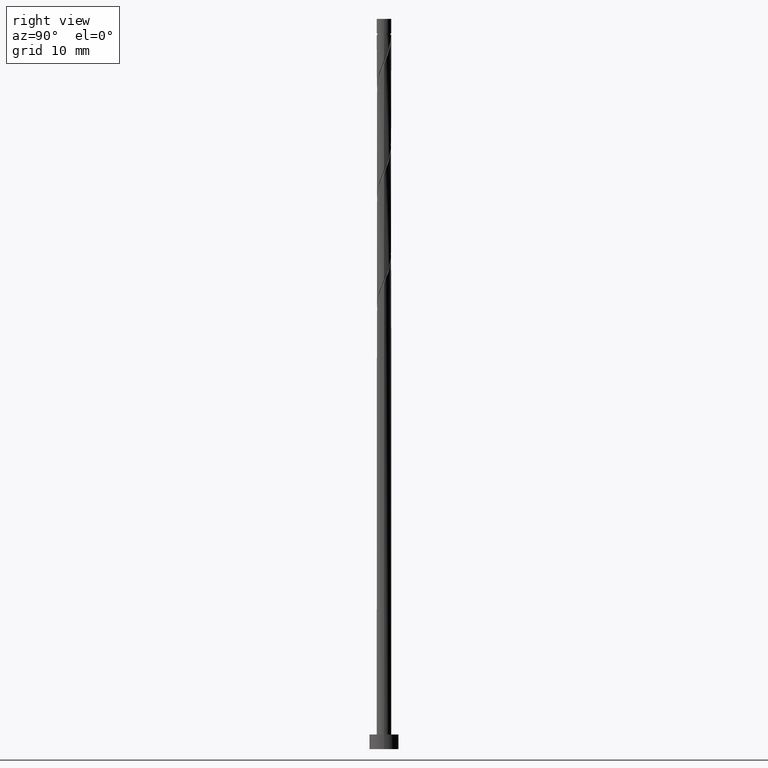
[diagram: clean part render]
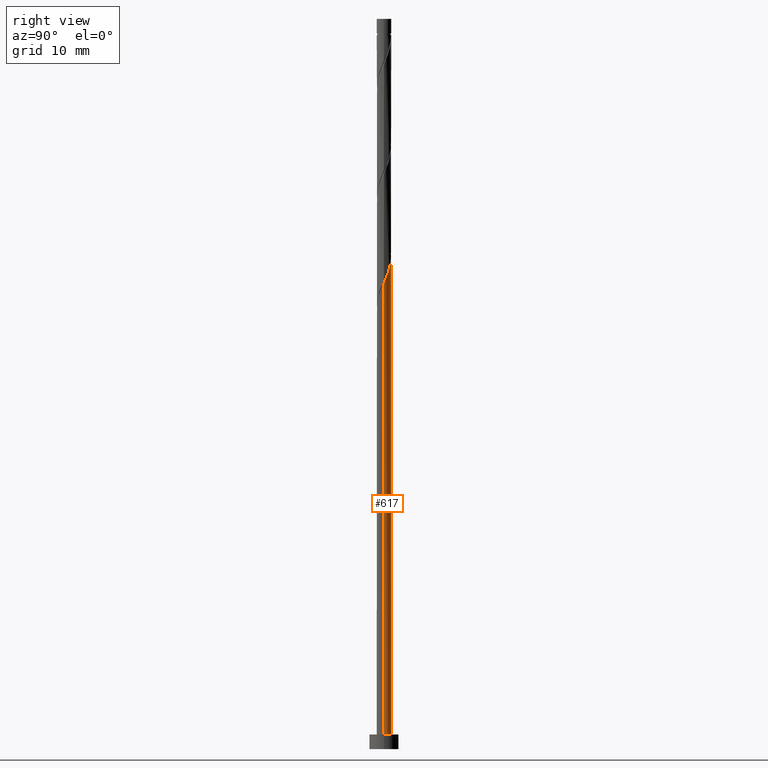
[diagram: same view with one face highlighted and labeled with its STEP entity id]
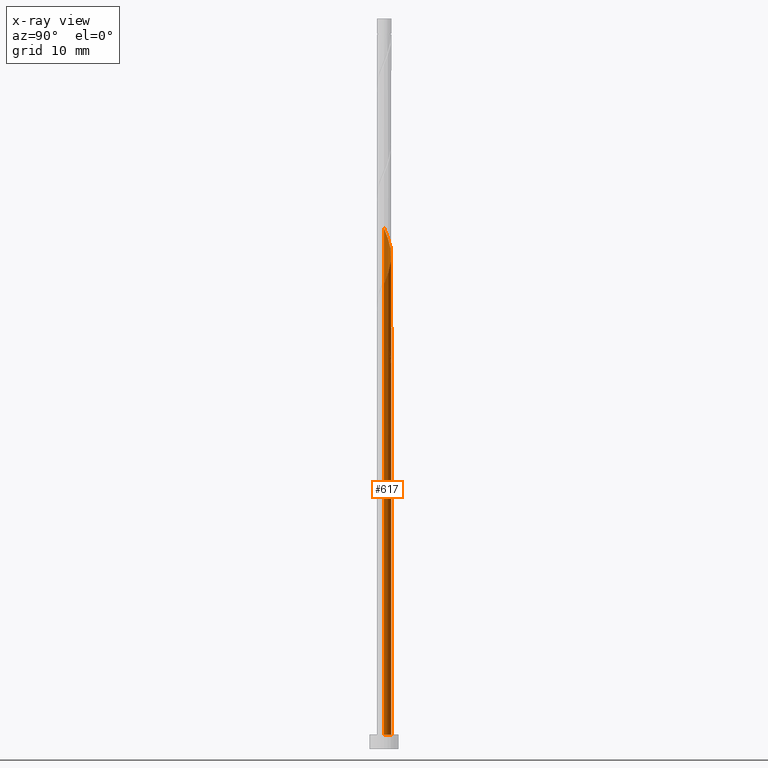
[diagram: x-ray of the same camera — body ghosted, the highlighted face saturated]
A machine part, right view. The second image highlights one B-rep face of the part: STEP entity #617.
The next image is the same camera in x-ray: the body ghosted, the highlighted face saturated — about 0% of this face is hidden behind the body in this view.
In plain terms, the highlighted cylindrical surface (edge-blend (fillet) strip) has radius 1 mm, axis along (-0, -0, -1).
Its self-contained STEP definition (entity closure, byte-faithful):
#1 = CARTESIAN_POINT ( 'NONE',  ( -0.8117578158769209740, 0.5839942194600310499, 55.30000000000000426 ) ) ;
#3 = CARTESIAN_POINT ( 'NONE',  ( -1.000000000000000000, 0.000000000000000000, 100.0000000000000000 ) ) ;
#35 = VERTEX_POINT ( 'NONE', #1387 ) ;
#43 = CARTESIAN_POINT ( 'NONE',  ( 0.8117578158769208629, 0.5839942194600310499, 65.29999999999999716 ) ) ;
#50 = CARTESIAN_POINT ( 'NONE',  ( 0.9625406160859107940, 0.2711375340762608444, 64.46666666666668277 ) ) ;
#55 = CARTESIAN_POINT ( 'NONE',  ( -0.9147317533455050498, 0.4408594147199556557, 55.71666666666665435 ) ) ;
#94 = ORIENTED_EDGE ( 'NONE', *, *, #199, .F. ) ;
#97 = FACE_OUTER_BOUND ( 'NONE', #1170, .T. ) ;
#100 = ORIENTED_EDGE ( 'NONE', *, *, #1466, .T. ) ;
#102 = DIRECTION ( 'NONE',  ( 1.000000000000000000, 0.000000000000000000, 0.000000000000000000 ) ) ;
#109 = EDGE_CURVE ( 'NONE', #180, #1163, #435, .T. ) ;
#110 = ORIENTED_EDGE ( 'NONE', *, *, #109, .F. ) ;
#148 = EDGE_CURVE ( 'NONE', #35, #216, #352, .T. ) ;
#169 = CARTESIAN_POINT ( 'NONE',  ( 1.000000000000000000, 7.866774965686214893E-17, 63.81035135352636445 ) ) ;
#174 = CARTESIAN_POINT ( 'NONE',  ( -0.9625406160859105720, 0.2711375340762611774, 56.13333333333331865 ) ) ;
#179 = CARTESIAN_POINT ( 'NONE',  ( -0.9841041459904503741, 0.2502603323944274094, 55.71666666666666856 ) ) ;
#180 = VERTEX_POINT ( 'NONE', #524 ) ;
#181 = CARTESIAN_POINT ( 'NONE',  ( -0.5930032716271594895, 0.8242804886476743365, 69.04999999999998295 ) ) ;
#199 = EDGE_CURVE ( 'NONE', #433, #216, #795, .T. ) ;
#216 = VERTEX_POINT ( 'NONE', #789 ) ;
#236 =( BOUNDED_CURVE ( )  B_SPLINE_CURVE ( 2, ( #915, #1271, #696, #1198, #725, #1082, #639, #179, #530, #387, #846 ),
 .UNSPECIFIED., .F., .T. ) 
 B_SPLINE_CURVE_WITH_KNOTS ( ( 3, 2, 2, 2, 2, 3 ),
 ( 0.000000000000000000, 0.01388888888888883955, 0.02777777777777779011, 0.04166666666666662966, 0.05555555555555558023, 0.05852626155789682205 ),
 .UNSPECIFIED. ) 
 CURVE ( )  GEOMETRIC_REPRESENTATION_ITEM ( )  RATIONAL_B_SPLINE_CURVE ( ( 0.9523809523809509958, 0.9379121457259110839, 0.9523809523809509958, 0.9379121457259110839, 0.9523809523809509958, 0.9379121457259110839, 0.9523809523809509958, 0.9379121457259110839, 0.9523809523809509958, 0.9492862072850183353, 0.9475153373969229520 ) ) 
 REPRESENTATION_ITEM ( '' )  );
#272 = DIRECTION ( 'NONE',  ( 0.000000000000000000, -0.000000000000000000, -1.000000000000000000 ) ) ;
#281 = CARTESIAN_POINT ( 'NONE',  ( -0.8391613293177733190, 0.5717512286855107595, 69.88333333333332575 ) ) ;
#321 = DIRECTION ( 'NONE',  ( -0.000000000000000000, -0.000000000000000000, -1.000000000000000000 ) ) ;
#336 = DIRECTION ( 'NONE',  ( -0.000000000000000000, -0.000000000000000000, -1.000000000000000000 ) ) ;
#341 = ORIENTED_EDGE ( 'NONE', *, *, #148, .T. ) ;
#352 = CIRCLE ( 'NONE', #1150, 1.000000000000000000 ) ;
#359 = LINE ( 'NONE', #452, #816 ) ;
#388 = CARTESIAN_POINT ( 'NONE',  ( -0.9999999999999993339, 0.1381563937346801385, 56.45980160168809192 ) ) ;
#387 = CARTESIAN_POINT ( 'NONE',  ( -1.000000000000000000, 0.03726283816066924826, 56.22138669025333968 ) ) ;
#398 = CARTESIAN_POINT ( 'NONE',  ( 0.9999999999999985567, 0.1381563937346822202, 64.14019839831192371 ) ) ;
#433 = VERTEX_POINT ( 'NONE', #1367 ) ;
#435 =( BOUNDED_CURVE ( )  B_SPLINE_CURVE ( 2, ( #169, #398, #50, #1071, #43, #614, #954, #741, #1211, #841, #1417, #1083, #746, #181, #1193, #281, #735, #1202, #602, #942, #1062 ),
 .UNSPECIFIED., .F., .T. ) 
 B_SPLINE_CURVE_WITH_KNOTS ( ( 3, 2, 2, 2, 2, 2, 2, 2, 2, 2, 3 ),
 ( 0.1835262615578969470, 0.1944444444444444198, 0.2083333333333333703, 0.2222222222222222099, 0.2361111111111111605, 0.2500000000000000000, 0.2638888888888888395, 0.2777777777777777901, 0.2916666666666666297, 0.3055555555555555802, 0.3085262615578962531 ),
 .UNSPECIFIED. ) 
 CURVE ( )  GEOMETRIC_REPRESENTATION_ITEM ( )  RATIONAL_B_SPLINE_CURVE ( ( 0.9475153373969227300, 0.9410068908218438555, 0.9523809523809509958, 0.9379121457259110839, 0.9523809523809509958, 0.9379121457259110839, 0.9523809523809509958, 0.9379121457259110839, 0.9523809523809509958, 0.9379121457259110839, 0.9523809523809509958, 0.9379121457259110839, 0.9523809523809509958, 0.9379121457259110839, 0.9523809523809509958, 0.9379121457259110839, 0.9523809523809509958, 0.9379121457259110839, 0.9523809523809509958, 0.9492862072850190014, 0.9475153373969236181 ) ) 
 REPRESENTATION_ITEM ( '' )  );
#443 = CARTESIAN_POINT ( 'NONE',  ( -0.07557042402773173073, 1.012610643405466249, 53.21666666666666856 ) ) ;
#452 = CARTESIAN_POINT ( 'NONE',  ( 1.000000000000000000, 1.224646799147353207E-16, 100.0000000000000000 ) ) ;
#464 = CARTESIAN_POINT ( 'NONE',  ( -0.5630650428037468069, 0.8264125831401737399, 54.46666666666666856 ) ) ;
#508 = EDGE_CURVE ( 'NONE', #35, #1293, #236, .T. ) ;
#511 = CARTESIAN_POINT ( 'NONE',  ( 0.000000000000000000, 0.000000000000000000, 52.79999999999999716 ) ) ;
#522 = CARTESIAN_POINT ( 'NONE',  ( -1.000000000000000222, 1.930935673395703650E-16, 56.78964864647364408 ) ) ;
#524 = CARTESIAN_POINT ( 'NONE',  ( 1.000000000000000000, 7.866774965686214893E-17, 63.81035135352636445 ) ) ;
#530 = CARTESIAN_POINT ( 'NONE',  ( -0.9972268124083832896, 0.07442233948093028573, 56.13333333333333997 ) ) ;
#535 = CARTESIAN_POINT ( 'NONE',  ( 0.000000000000000000, 0.000000000000000000, 100.0000000000000000 ) ) ;
#595 = VERTEX_POINT ( 'NONE', #653 ) ;
#598 = CARTESIAN_POINT ( 'NONE',  ( -1.000000000000000000, 0.000000000000000000, 100.0000000000000000 ) ) ;
#602 = CARTESIAN_POINT ( 'NONE',  ( -0.9972268124083832896, 0.07442233948093028573, 71.13333333333331154 ) ) ;
#610 = CARTESIAN_POINT ( 'NONE',  ( 1.000000000000000000, 1.224646799147353207E-16, 2.000000000000000000 ) ) ;
#614 = CARTESIAN_POINT ( 'NONE',  ( 0.7087838784083370092, 0.7271290242001062776, 65.71666666666665435 ) ) ;
#617 = ADVANCED_FACE ( 'NONE', ( #97 ), #757, .T. ) ;
#639 = CARTESIAN_POINT ( 'NONE',  ( -0.9116327376541116800, 0.4110057805399690567, 55.30000000000001137 ) ) ;
#653 = CARTESIAN_POINT ( 'NONE',  ( -1.000000000000000000, 0.000000000000000000, 2.000000000000000000 ) ) ;
#696 = CARTESIAN_POINT ( 'NONE',  ( -0.4341617696046364827, 0.9008349226211040950, 53.63333333333332575 ) ) ;
#699 = CARTESIAN_POINT ( 'NONE',  ( 0.000000000000000000, 0.000000000000000000, 2.000000000000000000 ) ) ;
#700 = AXIS2_PLACEMENT_3D ( 'NONE', #699, #805, #102 ) ;
#701 = CARTESIAN_POINT ( 'NONE',  ( -0.4173462071991568267, 0.9256961420802414242, 54.05000000000000426 ) ) ;
#715 = EDGE_CURVE ( 'NONE', #1293, #595, #1025, .T. ) ;
#725 = CARTESIAN_POINT ( 'NONE',  ( -0.7160823004724661267, 0.6980158586665925480, 54.46666666666666856 ) ) ;
#735 = CARTESIAN_POINT ( 'NONE',  ( -0.9116327376541116800, 0.4110057805399690567, 70.29999999999999716 ) ) ;
#741 = CARTESIAN_POINT ( 'NONE',  ( 0.4173462071991573263, 0.9256961420802408691, 66.55000000000001137 ) ) ;
#745 = VERTEX_POINT ( 'NONE', #610 ) ;
#746 = CARTESIAN_POINT ( 'NONE',  ( -0.4341617696046364827, 0.9008349226211040950, 68.63333333333335418 ) ) ;
#749 = EDGE_CURVE ( 'NONE', #1163, #433, #1048, .T. ) ;
#757 = CYLINDRICAL_SURFACE ( 'NONE', #1118, 1.000000000000000000 ) ;
#764 = ORIENTED_EDGE ( 'NONE', *, *, #749, .F. ) ;
#789 = CARTESIAN_POINT ( 'NONE',  ( 0.09987492177719117792, 0.9949999999999999956, 52.79999999999999716 ) ) ;
#795 =( BOUNDED_CURVE ( )  B_SPLINE_CURVE ( 2, ( #522, #388, #174, #55, #1, #1479, #464, #701, #920, #443, #1158 ),
 .UNSPECIFIED., .F., .T. ) 
 B_SPLINE_CURVE_WITH_KNOTS ( ( 3, 2, 2, 2, 2, 3 ),
 ( 0.9335262615578967527, 0.9444444444444444198, 0.9583333333333333703, 0.9722222222222222099, 0.9861111111111111605, 1.000000000000000000 ),
 .UNSPECIFIED. ) 
 CURVE ( )  GEOMETRIC_REPRESENTATION_ITEM ( )  RATIONAL_B_SPLINE_CURVE ( ( 0.9475153373969248394, 0.9410068908218454098, 0.9523809523809528832, 0.9379121457259129713, 0.9523809523809528832, 0.9379121457259129713, 0.9523809523809528832, 0.9379121457259129713, 0.9523809523809528832, 0.9379121457259129713, 0.9523809523809528832 ) ) 
 REPRESENTATION_ITEM ( '' )  );
#805 = DIRECTION ( 'NONE',  ( 0.000000000000000000, 0.000000000000000000, 1.000000000000000000 ) ) ;
#816 = VECTOR ( 'NONE', #336, 1000.000000000000000 ) ;
#841 = CARTESIAN_POINT ( 'NONE',  ( 0.07557042402773175849, 1.012610643405466027, 67.38333333333333997 ) ) ;
#846 = CARTESIAN_POINT ( 'NONE',  ( -0.9999999999999997780, -8.453207281310098825E-15, 56.31035135352637155 ) ) ;
#862 = ORIENTED_EDGE ( 'NONE', *, *, #1330, .T. ) ;
#894 = DIRECTION ( 'NONE',  ( -1.000000000000000000, 0.000000000000000000, 0.000000000000000000 ) ) ;
#915 = CARTESIAN_POINT ( 'NONE',  ( -0.09987492177719069220, 0.9949999999999997735, 52.79999999999999716 ) ) ;
#920 = CARTESIAN_POINT ( 'NONE',  ( -0.2464583156134442510, 0.9691533927428537254, 53.63333333333333286 ) ) ;
#929 = DIRECTION ( 'NONE',  ( -0.000000000000000000, -0.000000000000000000, -1.000000000000000000 ) ) ;
#942 = CARTESIAN_POINT ( 'NONE',  ( -0.9999999999999995559, 0.03726283816067638144, 71.22138669025331126 ) ) ;
#954 = CARTESIAN_POINT ( 'NONE',  ( 0.5630650428037471400, 0.8264125831401735178, 66.13333333333333997 ) ) ;
#956 = DIRECTION ( 'NONE',  ( -1.000000000000000000, 0.000000000000000000, 0.000000000000000000 ) ) ;
#989 = DIRECTION ( 'NONE',  ( -0.000000000000000000, -0.000000000000000000, -1.000000000000000000 ) ) ;
#1025 = LINE ( 'NONE', #3, #1435 ) ;
#1048 = LINE ( 'NONE', #598, #1222 ) ;
#1062 = CARTESIAN_POINT ( 'NONE',  ( -1.000000000000000000, -8.581936326203146096E-17, 71.31035135352634313 ) ) ;
#1071 = CARTESIAN_POINT ( 'NONE',  ( 0.9147317533455051608, 0.4408594147199549895, 64.88333333333335418 ) ) ;
#1082 = CARTESIAN_POINT ( 'NONE',  ( -0.8391613293177733190, 0.5717512286855107595, 54.88333333333332575 ) ) ;
#1083 = CARTESIAN_POINT ( 'NONE',  ( -0.2753202675821135870, 0.9773893565945337425, 68.21666666666666856 ) ) ;
#1118 = AXIS2_PLACEMENT_3D ( 'NONE', #535, #321, #894 ) ;
#1119 = CARTESIAN_POINT ( 'NONE',  ( -1.000000000000000000, -8.581936326203144864E-17, 71.31035135352634313 ) ) ;
#1150 = AXIS2_PLACEMENT_3D ( 'NONE', #511, #272, #956 ) ;
#1158 = CARTESIAN_POINT ( 'NONE',  ( 0.09987492177719117792, 0.9949999999999999956, 52.79999999999999005 ) ) ;
#1163 = VERTEX_POINT ( 'NONE', #1119 ) ;
#1170 = EDGE_LOOP ( 'NONE', ( #110, #100, #862, #1355, #1371, #341, #94, #764 ) ) ;
#1193 = CARTESIAN_POINT ( 'NONE',  ( -0.7160823004724661267, 0.6980158586665925480, 69.46666666666665435 ) ) ;
#1198 = CARTESIAN_POINT ( 'NONE',  ( -0.5930032716271594895, 0.8242804886476743365, 54.05000000000001137 ) ) ;
#1202 = CARTESIAN_POINT ( 'NONE',  ( -0.9841041459904503741, 0.2502603323944274094, 70.71666666666669698 ) ) ;
#1211 = CARTESIAN_POINT ( 'NONE',  ( 0.2464583156134448894, 0.9691533927428533923, 66.96666666666668277 ) ) ;
#1222 = VECTOR ( 'NONE', #929, 1000.000000000000000 ) ;
#1226 = CIRCLE ( 'NONE', #700, 1.000000000000000000 ) ;
#1265 = CARTESIAN_POINT ( 'NONE',  ( -0.9999999999999997780, -8.453207281310098825E-15, 56.31035135352637155 ) ) ;
#1271 = CARTESIAN_POINT ( 'NONE',  ( -0.2753202675821135870, 0.9773893565945337425, 53.21666666666666856 ) ) ;
#1293 = VERTEX_POINT ( 'NONE', #1265 ) ;
#1330 = EDGE_CURVE ( 'NONE', #745, #595, #1226, .T. ) ;
#1355 = ORIENTED_EDGE ( 'NONE', *, *, #715, .F. ) ;
#1367 = CARTESIAN_POINT ( 'NONE',  ( -1.000000000000000222, 1.930935673395703404E-16, 56.78964864647364408 ) ) ;
#1371 = ORIENTED_EDGE ( 'NONE', *, *, #508, .F. ) ;
#1387 = CARTESIAN_POINT ( 'NONE',  ( -0.09987492177719069220, 0.9949999999999997735, 52.79999999999999716 ) ) ;
#1417 = CARTESIAN_POINT ( 'NONE',  ( -0.09987492177719069220, 0.9949999999999999956, 67.79999999999999716 ) ) ;
#1435 = VECTOR ( 'NONE', #989, 1000.000000000000000 ) ;
#1466 = EDGE_CURVE ( 'NONE', #180, #745, #359, .T. ) ;
#1479 = CARTESIAN_POINT ( 'NONE',  ( -0.7087838784083368981, 0.7271290242001066106, 54.88333333333333997 ) ) ;